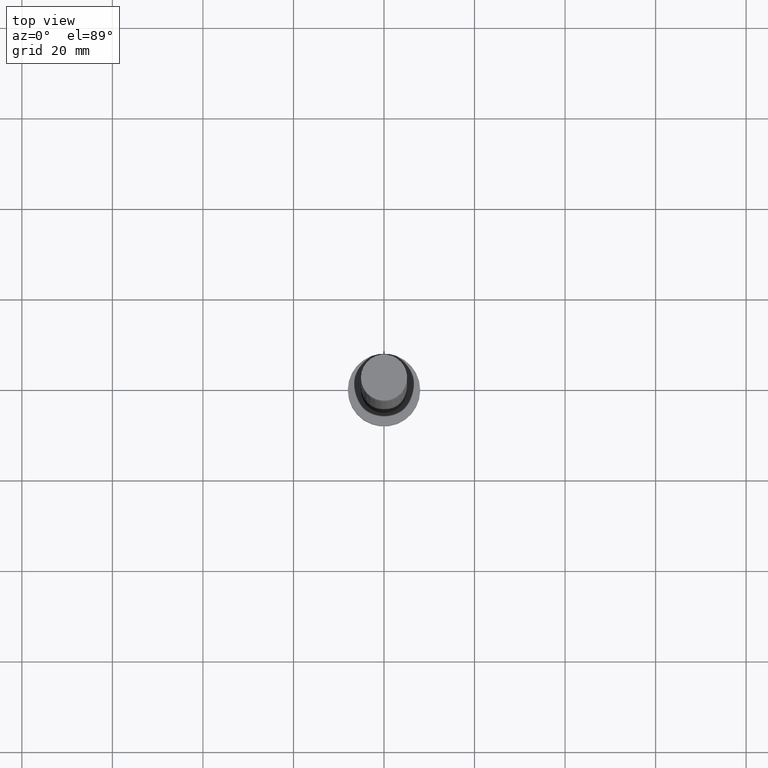
[diagram: clean part render]
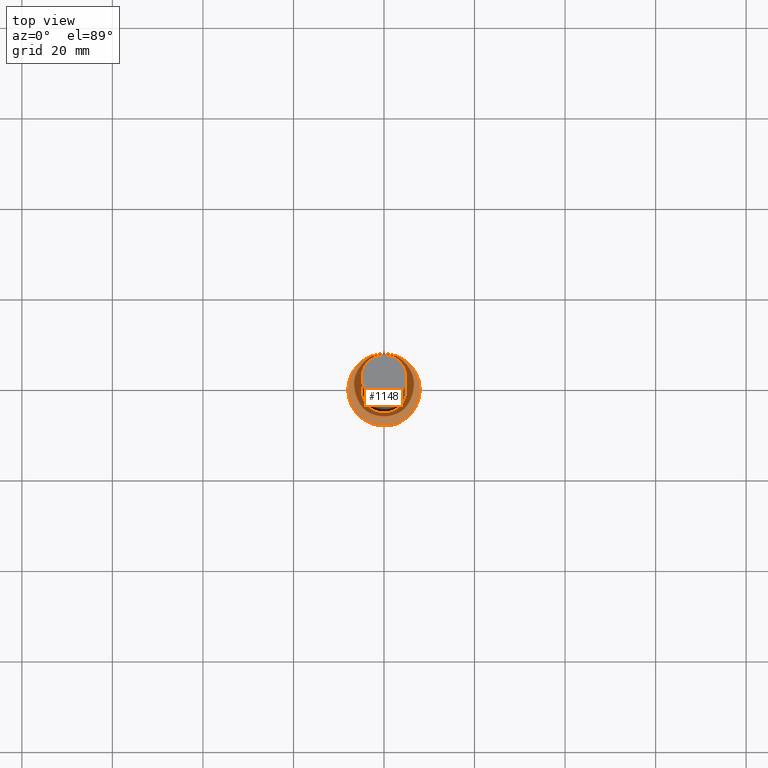
[diagram: same view with one face highlighted and labeled with its STEP entity id]
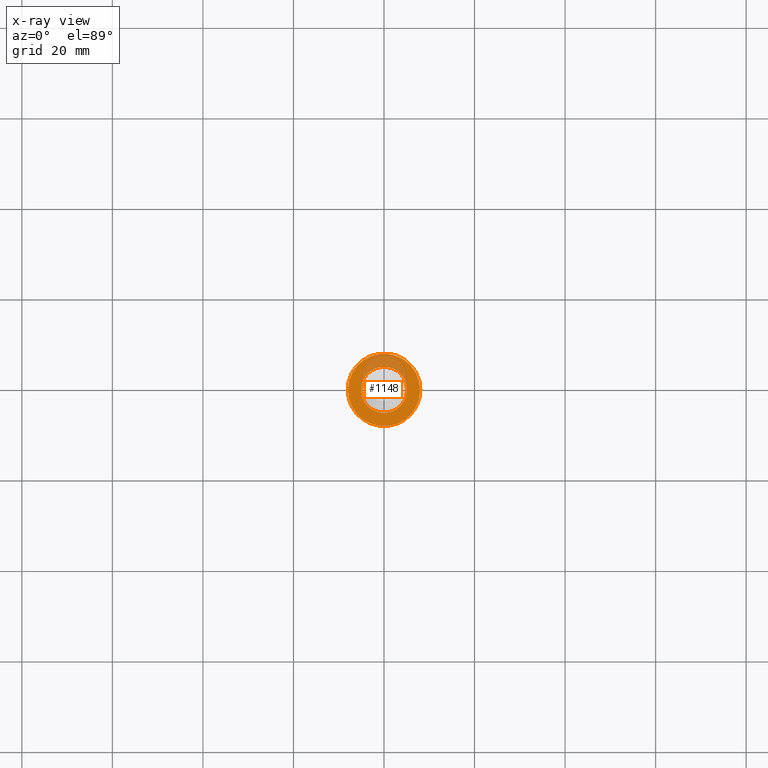
[diagram: x-ray of the same camera — body ghosted, the highlighted face saturated]
A machine part, top view. The second image highlights one B-rep face of the part: STEP entity #1148.
The next image is the same camera in x-ray: the body ghosted, the highlighted face saturated — about 23% of this face is hidden behind the body in this view.
In plain terms, the highlighted planar face has unit normal (0, 0, 1).
Its self-contained STEP definition (entity closure, byte-faithful):
#40 = AXIS2_PLACEMENT_3D ( 'NONE', #1375, #1114, #1625 ) ;
#123 = VERTEX_POINT ( 'NONE', #685 ) ;
#169 = AXIS2_PLACEMENT_3D ( 'NONE', #1491, #1376, #318 ) ;
#172 = VERTEX_POINT ( 'NONE', #431 ) ;
#194 = AXIS2_PLACEMENT_3D ( 'NONE', #1273, #850, #211 ) ;
#211 = DIRECTION ( 'NONE',  ( 1.000000000000000000, 0.000000000000000000, 0.000000000000000000 ) ) ;
#228 = CIRCLE ( 'NONE', #1459, 8.000000000000000000 ) ;
#270 = AXIS2_PLACEMENT_3D ( 'NONE', #1647, #487, #1001 ) ;
#280 = EDGE_CURVE ( 'NONE', #123, #172, #971, .T. ) ;
#318 = DIRECTION ( 'NONE',  ( 1.000000000000000000, 0.000000000000000000, 0.000000000000000000 ) ) ;
#359 = EDGE_CURVE ( 'NONE', #1004, #884, #1027, .T. ) ;
#431 = CARTESIAN_POINT ( 'NONE',  ( -5.100000000000001421, 0.000000000000000000, 5.000000000000000000 ) ) ;
#487 = DIRECTION ( 'NONE',  ( 0.000000000000000000, 0.000000000000000000, 1.000000000000000000 ) ) ;
#543 = DIRECTION ( 'NONE',  ( 1.000000000000000000, 0.000000000000000000, 0.000000000000000000 ) ) ;
#590 = PLANE ( 'NONE',  #40 ) ;
#685 = CARTESIAN_POINT ( 'NONE',  ( 5.100000000000001421, 6.245698675651502811E-16, 5.000000000000000000 ) ) ;
#758 = EDGE_LOOP ( 'NONE', ( #1107, #1018 ) ) ;
#791 = EDGE_LOOP ( 'NONE', ( #959, #1550 ) ) ;
#850 = DIRECTION ( 'NONE',  ( 0.000000000000000000, 0.000000000000000000, 1.000000000000000000 ) ) ;
#884 = VERTEX_POINT ( 'NONE', #1186 ) ;
#957 = FACE_OUTER_BOUND ( 'NONE', #791, .T. ) ;
#959 = ORIENTED_EDGE ( 'NONE', *, *, #359, .T. ) ;
#971 = CIRCLE ( 'NONE', #169, 5.100000000000001421 ) ;
#1001 = DIRECTION ( 'NONE',  ( 1.000000000000000000, 0.000000000000000000, 0.000000000000000000 ) ) ;
#1004 = VERTEX_POINT ( 'NONE', #1227 ) ;
#1018 = ORIENTED_EDGE ( 'NONE', *, *, #280, .F. ) ;
#1027 = CIRCLE ( 'NONE', #270, 8.000000000000000000 ) ;
#1036 = EDGE_CURVE ( 'NONE', #172, #123, #1219, .T. ) ;
#1073 = DIRECTION ( 'NONE',  ( 0.000000000000000000, 0.000000000000000000, 1.000000000000000000 ) ) ;
#1107 = ORIENTED_EDGE ( 'NONE', *, *, #1036, .F. ) ;
#1114 = DIRECTION ( 'NONE',  ( 0.000000000000000000, 0.000000000000000000, 1.000000000000000000 ) ) ;
#1148 = ADVANCED_FACE ( 'NONE', ( #1366, #957 ), #590, .T. ) ;
#1186 = CARTESIAN_POINT ( 'NONE',  ( 8.000000000000000000, 9.797174393178825657E-16, 5.000000000000000000 ) ) ;
#1196 = CARTESIAN_POINT ( 'NONE',  ( 0.000000000000000000, 0.000000000000000000, 5.000000000000000000 ) ) ;
#1219 = CIRCLE ( 'NONE', #194, 5.100000000000001421 ) ;
#1227 = CARTESIAN_POINT ( 'NONE',  ( -8.000000000000000000, 0.000000000000000000, 5.000000000000000000 ) ) ;
#1273 = CARTESIAN_POINT ( 'NONE',  ( 0.000000000000000000, 0.000000000000000000, 5.000000000000000000 ) ) ;
#1366 = FACE_BOUND ( 'NONE', #758, .T. ) ;
#1375 = CARTESIAN_POINT ( 'NONE',  ( 0.000000000000000000, 0.000000000000000000, 5.000000000000000000 ) ) ;
#1376 = DIRECTION ( 'NONE',  ( 0.000000000000000000, 0.000000000000000000, 1.000000000000000000 ) ) ;
#1459 = AXIS2_PLACEMENT_3D ( 'NONE', #1196, #1073, #543 ) ;
#1491 = CARTESIAN_POINT ( 'NONE',  ( 0.000000000000000000, 0.000000000000000000, 5.000000000000000000 ) ) ;
#1550 = ORIENTED_EDGE ( 'NONE', *, *, #1609, .T. ) ;
#1609 = EDGE_CURVE ( 'NONE', #884, #1004, #228, .T. ) ;
#1625 = DIRECTION ( 'NONE',  ( 1.000000000000000000, 0.000000000000000000, -0.000000000000000000 ) ) ;
#1647 = CARTESIAN_POINT ( 'NONE',  ( 0.000000000000000000, 0.000000000000000000, 5.000000000000000000 ) ) ;